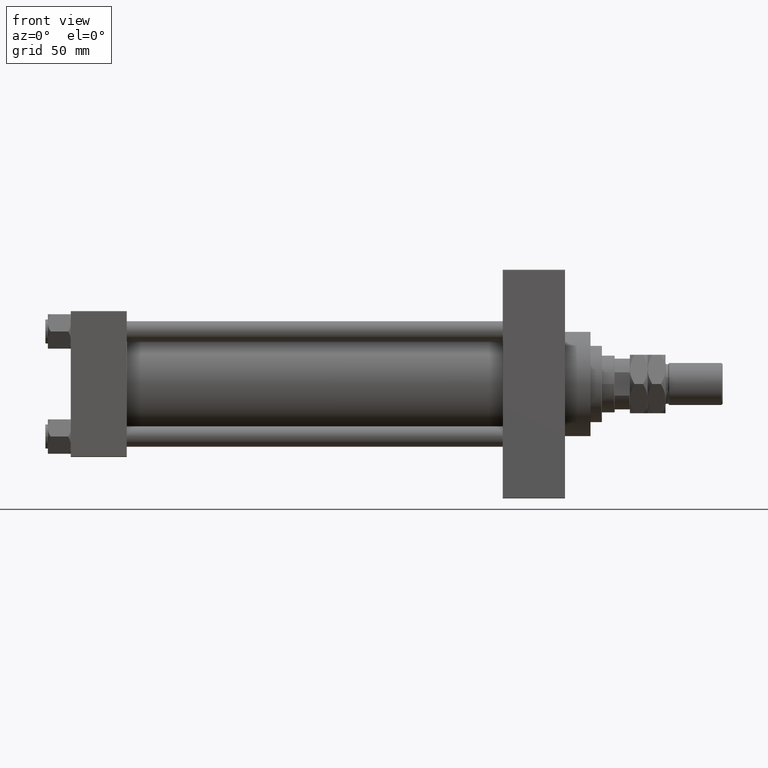
[diagram: clean part render]
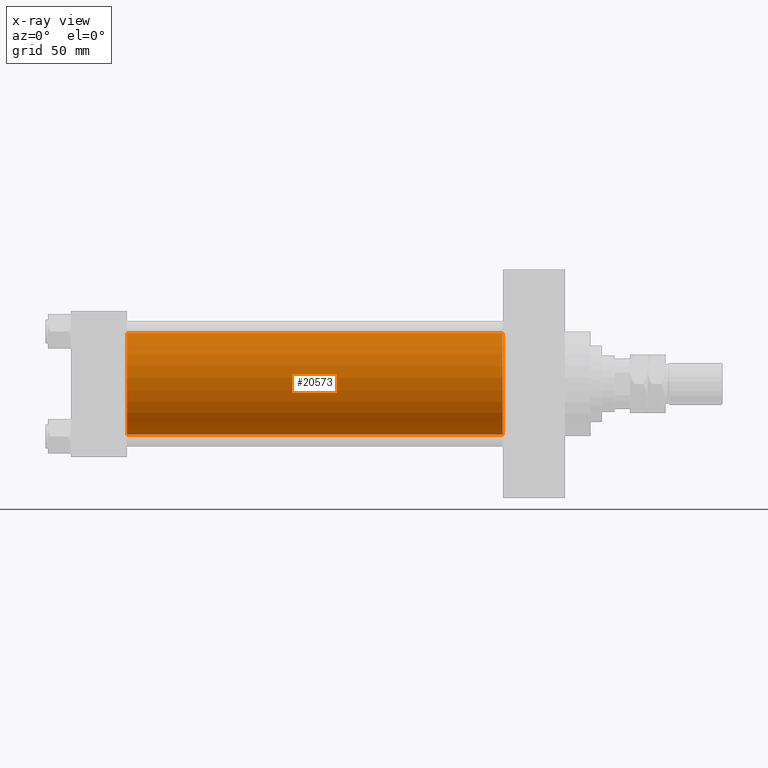
[diagram: x-ray — body ghosted, one internal face saturated and labeled with its STEP entity id]
A machine part, front view, then the same camera in x-ray: the body is ghosted and one INTERNAL B-rep face — a face not visible from any outside direction — is saturated and labeled: STEP entity #20573.
In plain terms, the highlighted cylindrical surface (partial cylindrical patch) has radius 40 mm, axis along (-1, -0, -0).
Its self-contained STEP definition (entity closure, byte-faithful):
#623 = ORIENTED_EDGE ( 'NONE', *, *, #50903, .F. ) ;
#999 = DIRECTION ( 'NONE',  ( 0.000000000000000000, 0.000000000000000000, -1.000000000000000000 ) ) ;
#1833 = EDGE_CURVE ( 'NONE', #37201, #2479, #40008, .T. ) ;
#2479 = VERTEX_POINT ( 'NONE', #14285 ) ;
#5139 = AXIS2_PLACEMENT_3D ( 'NONE', #21541, #16417, #27599 ) ;
#9144 = LINE ( 'NONE', #40642, #16972 ) ;
#9340 = VERTEX_POINT ( 'NONE', #38689 ) ;
#10415 = CYLINDRICAL_SURFACE ( 'NONE', #22881, 40.00000000000000000 ) ;
#13168 = EDGE_LOOP ( 'NONE', ( #18145, #28173, #37168, #623 ) ) ;
#14285 = CARTESIAN_POINT ( 'NONE',  ( 44.00000000000000000, 2.296501982624201990E-15, -40.00000000000000000 ) ) ;
#14304 = EDGE_CURVE ( 'NONE', #9340, #2479, #27588, .T. ) ;
#16417 = DIRECTION ( 'NONE',  ( 1.000000000000000000, 0.000000000000000000, 0.000000000000000000 ) ) ;
#16972 = VECTOR ( 'NONE', #40888, 1000.000000000000000 ) ;
#18145 = ORIENTED_EDGE ( 'NONE', *, *, #21549, .T. ) ;
#18150 = CARTESIAN_POINT ( 'NONE',  ( 339.9999999999999432, -2.602085213965210642E-15, 40.00000000000000000 ) ) ;
#20573 = ADVANCED_FACE ( 'NONE', ( #30956 ), #10415, .F. ) ;
#21541 = CARTESIAN_POINT ( 'NONE',  ( 44.00000000000000000, -2.602085213965210642E-15, 0.000000000000000000 ) ) ;
#21549 = EDGE_CURVE ( 'NONE', #32309, #37201, #22766, .T. ) ;
#22766 = CIRCLE ( 'NONE', #41891, 40.00000000000000000 ) ;
#22881 = AXIS2_PLACEMENT_3D ( 'NONE', #39025, #38261, #34360 ) ;
#27588 = CIRCLE ( 'NONE', #5139, 40.00000000000000000 ) ;
#27599 = DIRECTION ( 'NONE',  ( 0.000000000000000000, 0.000000000000000000, -1.000000000000000000 ) ) ;
#28173 = ORIENTED_EDGE ( 'NONE', *, *, #1833, .T. ) ;
#29049 = CARTESIAN_POINT ( 'NONE',  ( 339.9999999999999432, 2.296501982624201990E-15, -40.00000000000000000 ) ) ;
#30956 = FACE_OUTER_BOUND ( 'NONE', #13168, .T. ) ;
#32045 = VECTOR ( 'NONE', #44922, 1000.000000000000000 ) ;
#32309 = VERTEX_POINT ( 'NONE', #18150 ) ;
#33524 = CARTESIAN_POINT ( 'NONE',  ( 339.9999999999999432, -2.602085213965210642E-15, 0.000000000000000000 ) ) ;
#34360 = DIRECTION ( 'NONE',  ( 0.000000000000000000, 0.000000000000000000, 1.000000000000000000 ) ) ;
#37168 = ORIENTED_EDGE ( 'NONE', *, *, #14304, .F. ) ;
#37201 = VERTEX_POINT ( 'NONE', #41316 ) ;
#37436 = DIRECTION ( 'NONE',  ( 1.000000000000000000, 0.000000000000000000, 0.000000000000000000 ) ) ;
#38261 = DIRECTION ( 'NONE',  ( -1.000000000000000000, -0.000000000000000000, -0.000000000000000000 ) ) ;
#38689 = CARTESIAN_POINT ( 'NONE',  ( 44.00000000000000000, -2.602085213965210642E-15, 40.00000000000000000 ) ) ;
#39025 = CARTESIAN_POINT ( 'NONE',  ( 339.9999999999999432, -2.602085213965210642E-15, 0.000000000000000000 ) ) ;
#40008 = LINE ( 'NONE', #29049, #32045 ) ;
#40642 = CARTESIAN_POINT ( 'NONE',  ( 339.9999999999999432, -2.602085213965210642E-15, 40.00000000000000000 ) ) ;
#40888 = DIRECTION ( 'NONE',  ( -1.000000000000000000, -0.000000000000000000, -0.000000000000000000 ) ) ;
#41316 = CARTESIAN_POINT ( 'NONE',  ( 339.9999999999999432, 2.296501982624201990E-15, -40.00000000000000000 ) ) ;
#41891 = AXIS2_PLACEMENT_3D ( 'NONE', #33524, #37436, #999 ) ;
#44922 = DIRECTION ( 'NONE',  ( -1.000000000000000000, -0.000000000000000000, -0.000000000000000000 ) ) ;
#50903 = EDGE_CURVE ( 'NONE', #32309, #9340, #9144, .T. ) ;